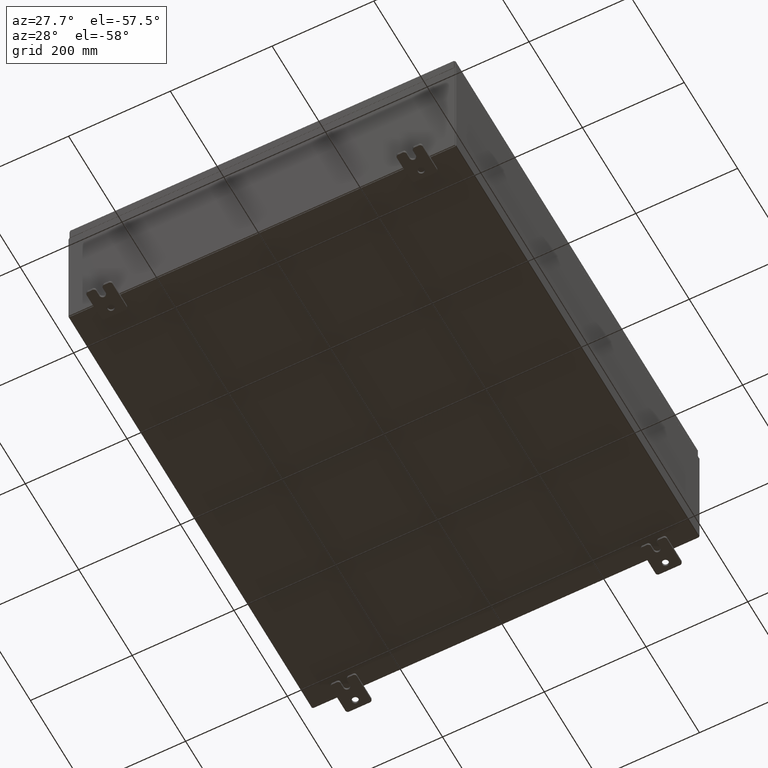
[diagram: clean part render]
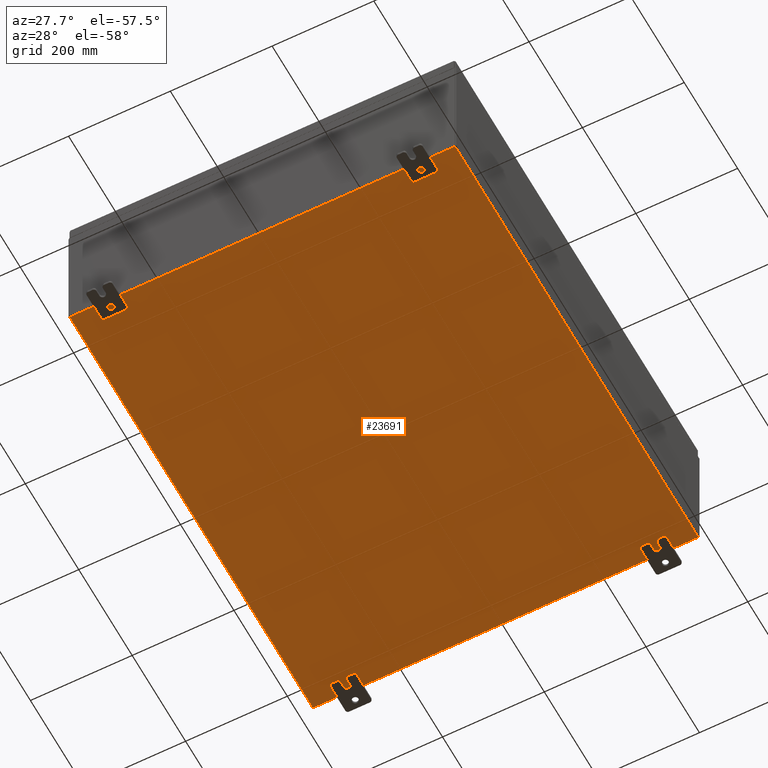
[diagram: same view with one face highlighted and labeled with its STEP entity id]
A machine part, auxiliary view. The second image highlights one B-rep face of the part: STEP entity #23691.
In plain terms, the highlighted planar face has unit normal (0, 0, -1).
Its self-contained STEP definition (entity closure, byte-faithful):
#120 = CARTESIAN_POINT ( 'NONE',  ( -14.91230000000000200, -17.92530000000000000, -0.07469999999999994700 ) ) ;
#3612 = DIRECTION ( 'NONE',  ( 1.000000000000000000, 0.0000000000000000000, 0.0000000000000000000 ) ) ;
#5656 = PLANE ( 'NONE',  #39476 ) ;
#6391 = LINE ( 'NONE', #50928, #45420 ) ;
#6631 = EDGE_CURVE ( 'NONE', #32242, #29421, #6391, .T. ) ;
#6845 = LINE ( 'NONE', #53381, #59253 ) ;
#10739 = CARTESIAN_POINT ( 'NONE',  ( 0.0000000000000000000, 0.0000000000000000000, -0.07470000000000000300 ) ) ;
#12895 = VECTOR ( 'NONE', #59144, 39.37007874015748100 ) ;
#13200 = VERTEX_POINT ( 'NONE', #56131 ) ;
#15878 = DIRECTION ( 'NONE',  ( 0.0000000000000000000, 0.0000000000000000000, -1.000000000000000000 ) ) ;
#21395 = ORIENTED_EDGE ( 'NONE', *, *, #6631, .F. ) ;
#23691 = ADVANCED_FACE ( 'NONE', ( #28152 ), #5656, .T. ) ;
#25773 = DIRECTION ( 'NONE',  ( -1.000000000000000000, -0.0000000000000000000, -0.0000000000000000000 ) ) ;
#27462 = EDGE_LOOP ( 'NONE', ( #37668, #50675, #21395, #44471 ) ) ;
#28152 = FACE_OUTER_BOUND ( 'NONE', #27462, .T. ) ;
#29421 = VERTEX_POINT ( 'NONE', #48884 ) ;
#30582 = CARTESIAN_POINT ( 'NONE',  ( 14.91229999999999800, 17.92530000000000000, -0.07470000000000251400 ) ) ;
#32242 = VERTEX_POINT ( 'NONE', #30582 ) ;
#34163 = CARTESIAN_POINT ( 'NONE',  ( -15.00000000000000400, -17.92530000000000000, -0.07470000000000000300 ) ) ;
#34168 = CARTESIAN_POINT ( 'NONE',  ( 14.91229999999999800, 17.92530000000000000, -0.07470000000000251400 ) ) ;
#36258 = EDGE_CURVE ( 'NONE', #46296, #29421, #6845, .T. ) ;
#37668 = ORIENTED_EDGE ( 'NONE', *, *, #44120, .F. ) ;
#38435 = LINE ( 'NONE', #34168, #12895 ) ;
#39476 = AXIS2_PLACEMENT_3D ( 'NONE', #10739, #15878, #51484 ) ;
#40999 = EDGE_CURVE ( 'NONE', #32242, #13200, #38435, .T. ) ;
#44120 = EDGE_CURVE ( 'NONE', #46296, #13200, #57199, .T. ) ;
#44471 = ORIENTED_EDGE ( 'NONE', *, *, #40999, .T. ) ;
#45420 = VECTOR ( 'NONE', #25773, 39.37007874015748100 ) ;
#46296 = VERTEX_POINT ( 'NONE', #120 ) ;
#48884 = CARTESIAN_POINT ( 'NONE',  ( -14.91230000000000200, 17.92530000000000000, -0.07470000000000000300 ) ) ;
#50675 = ORIENTED_EDGE ( 'NONE', *, *, #36258, .T. ) ;
#50928 = CARTESIAN_POINT ( 'NONE',  ( -15.00000000000000400, 17.92530000000000000, -0.07470000000000000300 ) ) ;
#51484 = DIRECTION ( 'NONE',  ( -1.000000000000000000, 0.0000000000000000000, -0.0000000000000000000 ) ) ;
#53381 = CARTESIAN_POINT ( 'NONE',  ( -14.91230000000000200, -17.92530000000000000, -0.07469999999999994700 ) ) ;
#56131 = CARTESIAN_POINT ( 'NONE',  ( 14.91229999999999800, -17.92530000000000000, -0.07470000000000000300 ) ) ;
#57199 = LINE ( 'NONE', #34163, #61944 ) ;
#58447 = DIRECTION ( 'NONE',  ( -0.0000000000000000000, 1.000000000000000000, -0.0000000000000000000 ) ) ;
#59144 = DIRECTION ( 'NONE',  ( -0.0000000000000000000, -1.000000000000000000, 8.208677865577646300E-017 ) ) ;
#59253 = VECTOR ( 'NONE', #58447, 39.37007874015748100 ) ;
#61944 = VECTOR ( 'NONE', #3612, 39.37007874015748100 ) ;